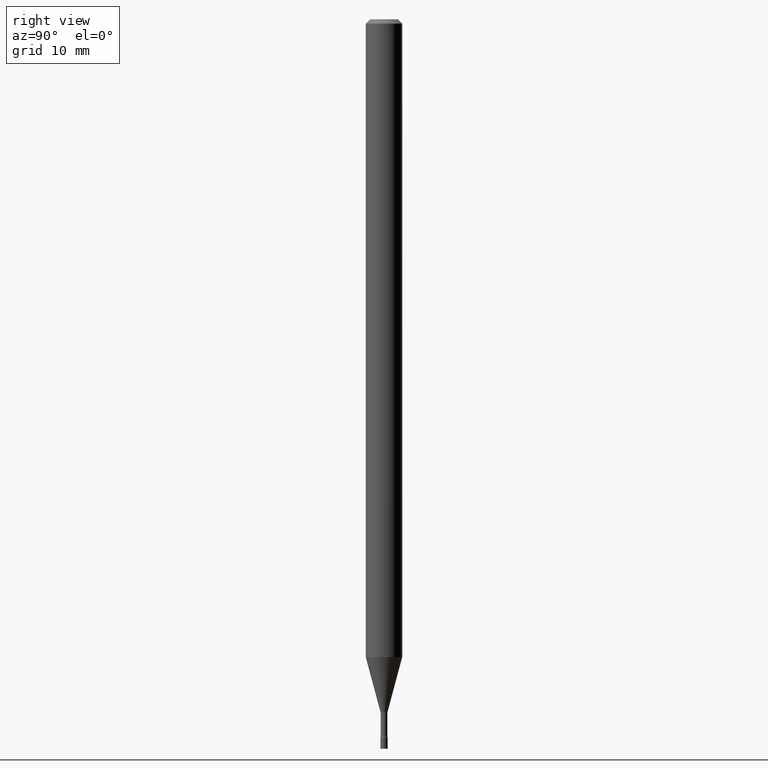
[diagram: clean part render]
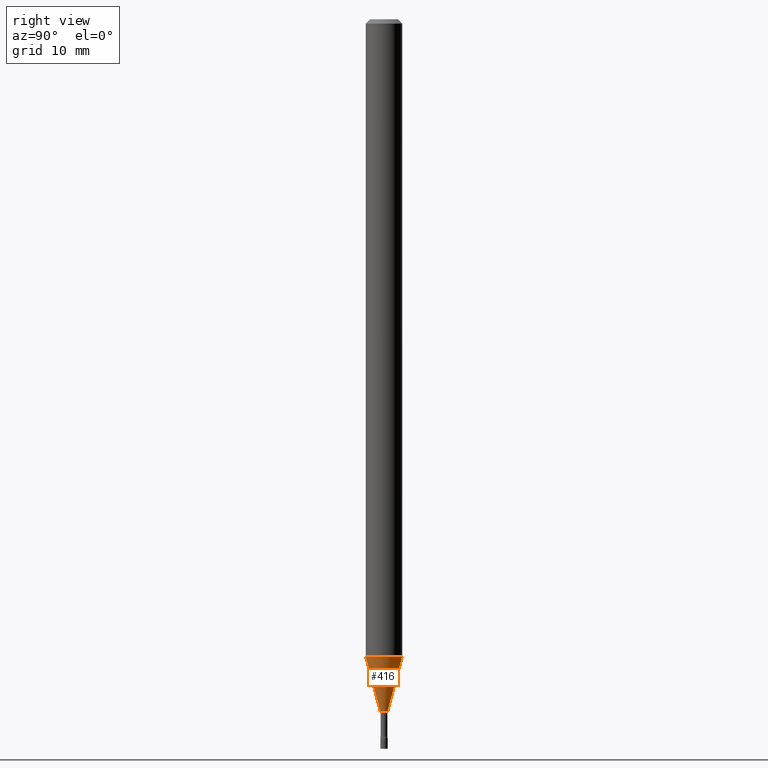
[diagram: same view with one face highlighted and labeled with its STEP entity id]
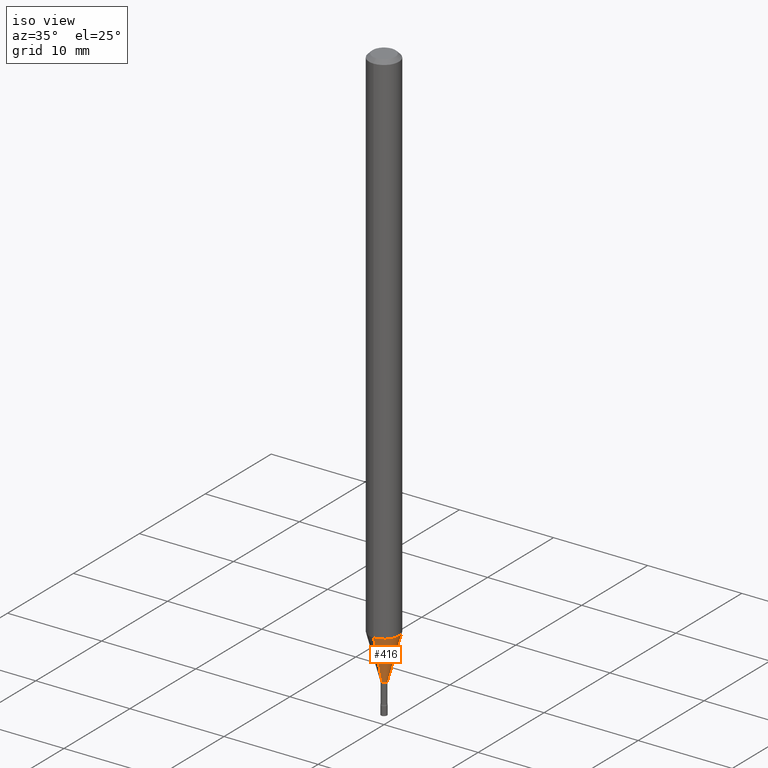
[diagram: same view with one face highlighted and labeled with its STEP entity id]
A machine part, right view. The second image highlights one B-rep face of the part: STEP entity #416.
A second angle (iso view) of the same face is appended — the face is thin or edge-on in the first view.
In plain terms, the highlighted conical surface has half-angle 15 deg.
Its self-contained STEP definition (entity closure, byte-faithful):
#4 = ORIENTED_EDGE ( 'NONE', *, *, #240, .F. ) ;
#10 = VERTEX_POINT ( 'NONE', #378 ) ;
#48 = CONICAL_SURFACE ( 'NONE', #470, 0.01226111260566398187, 0.2617993877991499629 ) ;
#81 = VERTEX_POINT ( 'NONE', #297 ) ;
#99 = DIRECTION ( 'NONE',  ( -6.982962677686265922E-15, -1.000000000000000000, 4.370956789862821150E-15 ) ) ;
#112 = VECTOR ( 'NONE', #141, 39.37007874015748143 ) ;
#140 = DIRECTION ( 'NONE',  ( -6.982962677686265133E-15, -1.000000000000000000, 0.000000000000000000 ) ) ;
#141 = DIRECTION ( 'NONE',  ( -1.807323732225328167E-15, -0.2588190451025179084, 0.9659258262890690894 ) ) ;
#148 = CARTESIAN_POINT ( 'NONE',  ( 5.803455969655609935E-29, -8.285418749494658731E-15, -2.373092501787273267 ) ) ;
#153 = VERTEX_POINT ( 'NONE', #258 ) ;
#154 = EDGE_CURVE ( 'NONE', #10, #81, #282, .T. ) ;
#183 = DIRECTION ( 'NONE',  ( -2.445524548783828743E-29, 3.491401512269146579E-15, 1.000000000000000000 ) ) ;
#192 = FACE_OUTER_BOUND ( 'NONE', #438, .T. ) ;
#207 = VERTEX_POINT ( 'NONE', #218 ) ;
#214 = AXIS2_PLACEMENT_3D ( 'NONE', #263, #183, #140 ) ;
#218 = CARTESIAN_POINT ( 'NONE',  ( 4.440892098501159629E-16, 0.06249999999999236722, -2.185598421515880130 ) ) ;
#225 = LINE ( 'NONE', #501, #112 ) ;
#240 = EDGE_CURVE ( 'NONE', #153, #207, #365, .T. ) ;
#258 = CARTESIAN_POINT ( 'NONE',  ( -4.364351673553382734E-16, -0.06250000000000764666, -2.185598421515879686 ) ) ;
#263 = CARTESIAN_POINT ( 'NONE',  ( 5.803455969655609935E-29, -8.285418749494658731E-15, -2.373092501787273267 ) ) ;
#282 = CIRCLE ( 'NONE', #214, 0.01226111260566398187 ) ;
#297 = CARTESIAN_POINT ( 'NONE',  ( 2.656048273965428500E-16, 0.01226111260565569683, -2.373092501787273267 ) ) ;
#321 = DIRECTION ( 'NONE',  ( -2.445524548783828743E-29, 3.491401512269146579E-15, 1.000000000000000000 ) ) ;
#323 = AXIS2_PLACEMENT_3D ( 'NONE', #428, #458, #99 ) ;
#326 = DIRECTION ( 'NONE',  ( -6.982962677686265133E-15, -1.000000000000000000, 0.000000000000000000 ) ) ;
#348 = EDGE_CURVE ( 'NONE', #10, #153, #225, .T. ) ;
#353 = LINE ( 'NONE', #425, #370 ) ;
#365 = CIRCLE ( 'NONE', #323, 0.06250000000000000000 ) ;
#370 = VECTOR ( 'NONE', #498, 39.37007874015748854 ) ;
#378 = CARTESIAN_POINT ( 'NONE',  ( -8.561889171220214759E-17, -0.01226111260567226691, -2.373092501787273267 ) ) ;
#388 = EDGE_CURVE ( 'NONE', #81, #207, #353, .T. ) ;
#408 = ORIENTED_EDGE ( 'NONE', *, *, #154, .T. ) ;
#416 = ADVANCED_FACE ( 'NONE', ( #192 ), #48, .T. ) ;
#425 = CARTESIAN_POINT ( 'NONE',  ( 8.712044494296937963E-17, 0.01226111260565569683, -2.373092501787273267 ) ) ;
#428 = CARTESIAN_POINT ( 'NONE',  ( 5.344934593600271178E-29, -7.630801634093603324E-15, -2.185598421515880130 ) ) ;
#438 = EDGE_LOOP ( 'NONE', ( #408, #484, #4, #449 ) ) ;
#449 = ORIENTED_EDGE ( 'NONE', *, *, #348, .F. ) ;
#458 = DIRECTION ( 'NONE',  ( -2.445524548783828743E-29, 3.491401512269146579E-15, 1.000000000000000000 ) ) ;
#470 = AXIS2_PLACEMENT_3D ( 'NONE', #148, #321, #326 ) ;
#484 = ORIENTED_EDGE ( 'NONE', *, *, #388, .T. ) ;
#498 = DIRECTION ( 'NONE',  ( 1.839019923739597949E-15, 0.2588190451025246253, 0.9659258262890670910 ) ) ;
#501 = CARTESIAN_POINT ( 'NONE',  ( -8.561889171220214759E-17, -0.01226111260567226691, -2.373092501787273267 ) ) ;